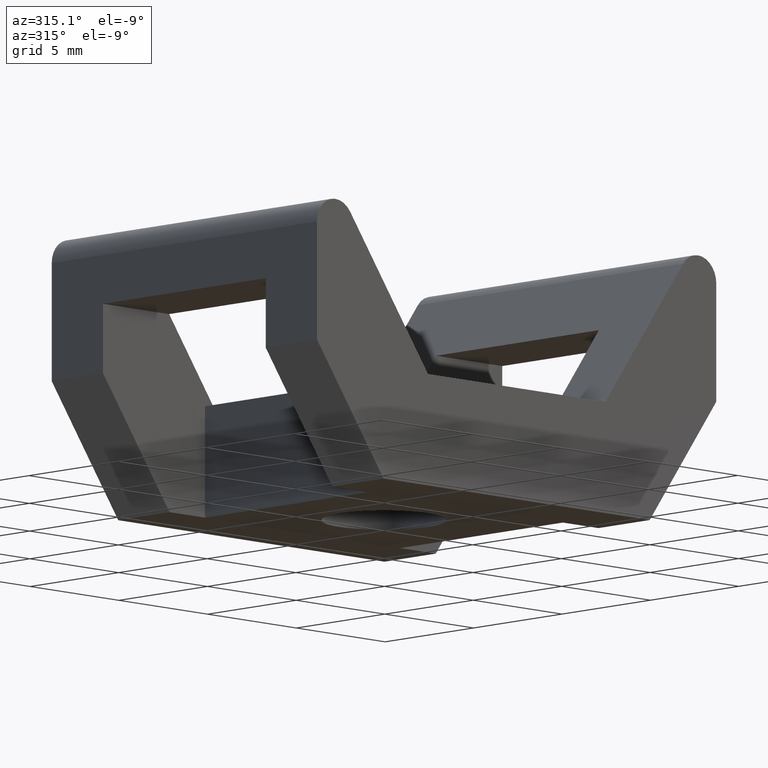
[diagram: clean part render]
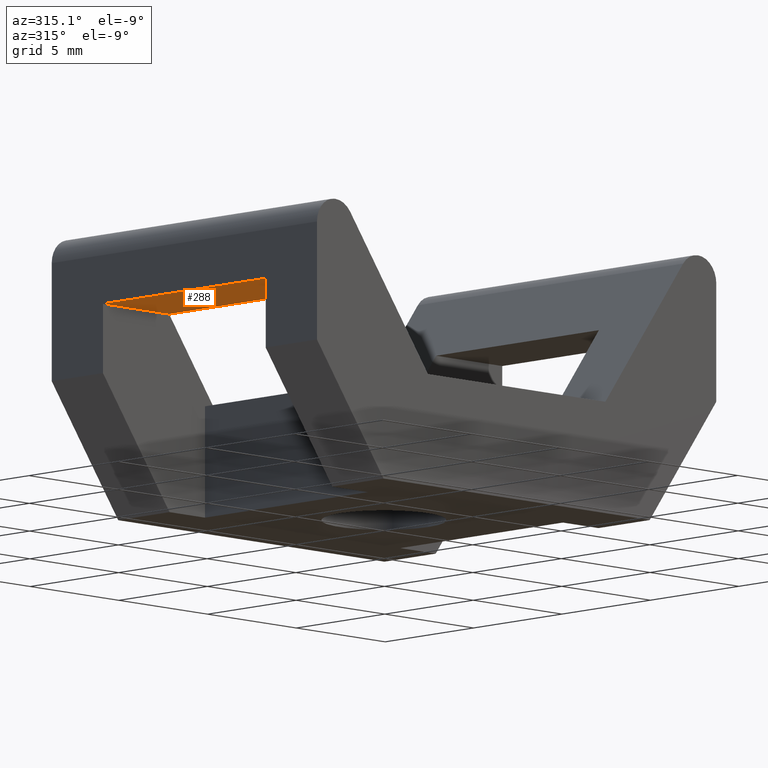
[diagram: same view with one face highlighted and labeled with its STEP entity id]
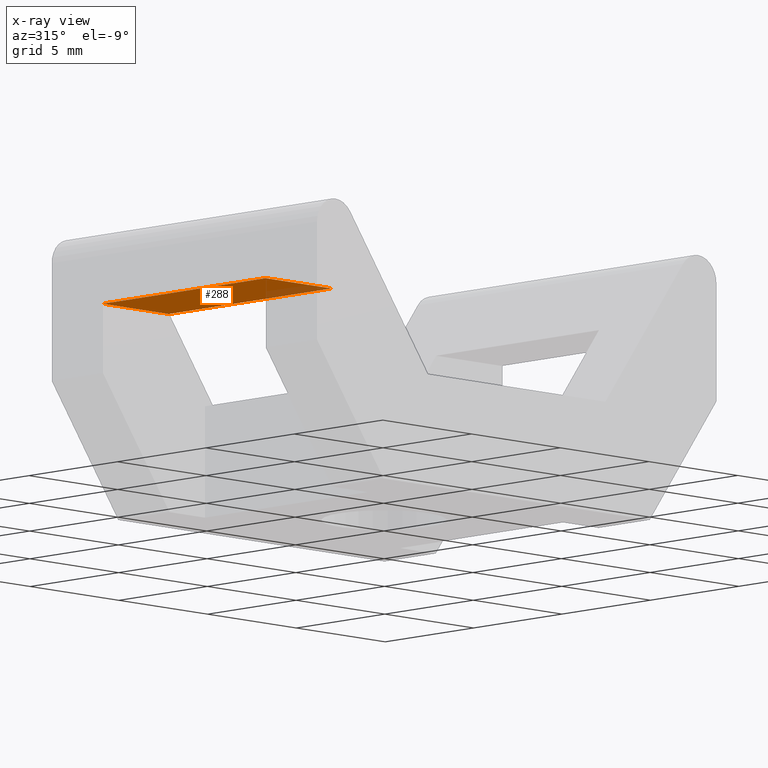
[diagram: x-ray of the same camera — body ghosted, the highlighted face saturated]
A machine part, auxiliary view. The second image highlights one B-rep face of the part: STEP entity #288.
The next image is the same camera in x-ray: the body ghosted, the highlighted face saturated — about 12% of this face is hidden behind the body in this view.
In plain terms, the highlighted planar face has unit normal (0, -0, 1).
Its self-contained STEP definition (entity closure, byte-faithful):
#14 = CARTESIAN_POINT ( 'NONE',  ( -11.24999999999999800, -4.599999999999999600, 8.000000000000010700 ) ) ;
#66 = FACE_OUTER_BOUND ( 'NONE', #748, .T. ) ;
#76 = CARTESIAN_POINT ( 'NONE',  ( -7.524038461538469700, 0.0000000000000000000, 8.000000000000000000 ) ) ;
#121 = EDGE_CURVE ( 'NONE', #470, #867, #317, .T. ) ;
#159 = ORIENTED_EDGE ( 'NONE', *, *, #519, .T. ) ;
#162 = VERTEX_POINT ( 'NONE', #460 ) ;
#243 = DIRECTION ( 'NONE',  ( 2.775557561562889900E-016, -0.0000000000000000000, 1.000000000000000000 ) ) ;
#273 = ORIENTED_EDGE ( 'NONE', *, *, #686, .T. ) ;
#288 = ADVANCED_FACE ( 'NONE', ( #66 ), #833, .F. ) ;
#305 = VECTOR ( 'NONE', #345, 1000.000000000000000 ) ;
#317 = LINE ( 'NONE', #76, #646 ) ;
#323 = EDGE_CURVE ( 'NONE', #162, #955, #514, .T. ) ;
#345 = DIRECTION ( 'NONE',  ( -0.0000000000000000000, -1.000000000000000000, 0.0000000000000000000 ) ) ;
#406 = DIRECTION ( 'NONE',  ( 1.000000000000000000, -0.0000000000000000000, 0.0000000000000000000 ) ) ;
#409 = CARTESIAN_POINT ( 'NONE',  ( -11.24999999999999800, 0.0000000000000000000, 8.000000000000010700 ) ) ;
#450 = VECTOR ( 'NONE', #606, 1000.000000000000000 ) ;
#460 = CARTESIAN_POINT ( 'NONE',  ( -11.25000000000000200, 4.599999999999999600, 8.000000000000010700 ) ) ;
#470 = VERTEX_POINT ( 'NONE', #1028 ) ;
#489 = CARTESIAN_POINT ( 'NONE',  ( -5.500000000000000000, 4.599999999999999600, 8.000000000000010700 ) ) ;
#514 = LINE ( 'NONE', #409, #305 ) ;
#519 = EDGE_CURVE ( 'NONE', #470, #955, #535, .T. ) ;
#522 = CARTESIAN_POINT ( 'NONE',  ( -7.524038461538468800, 4.599999999999999600, 8.000000000000007100 ) ) ;
#535 = LINE ( 'NONE', #547, #450 ) ;
#547 = CARTESIAN_POINT ( 'NONE',  ( -11.25000000000000000, -4.599999999999999600, 8.000000000000010700 ) ) ;
#601 = ORIENTED_EDGE ( 'NONE', *, *, #121, .F. ) ;
#606 = DIRECTION ( 'NONE',  ( -1.000000000000000000, -0.0000000000000000000, -0.0000000000000000000 ) ) ;
#646 = VECTOR ( 'NONE', #849, 1000.000000000000000 ) ;
#651 = ORIENTED_EDGE ( 'NONE', *, *, #323, .F. ) ;
#686 = EDGE_CURVE ( 'NONE', #162, #867, #1074, .T. ) ;
#748 = EDGE_LOOP ( 'NONE', ( #159, #651, #273, #601 ) ) ;
#753 = CARTESIAN_POINT ( 'NONE',  ( -8.375000000000000000, 0.0000000000000000000, 8.000000000000000000 ) ) ;
#756 = DIRECTION ( 'NONE',  ( 1.000000000000000000, 0.0000000000000000000, -2.775557561562889900E-016 ) ) ;
#833 = PLANE ( 'NONE',  #888 ) ;
#849 = DIRECTION ( 'NONE',  ( 0.0000000000000000000, 1.000000000000000000, 0.0000000000000000000 ) ) ;
#867 = VERTEX_POINT ( 'NONE', #522 ) ;
#872 = VECTOR ( 'NONE', #406, 1000.000000000000000 ) ;
#888 = AXIS2_PLACEMENT_3D ( 'NONE', #753, #243, #756 ) ;
#955 = VERTEX_POINT ( 'NONE', #14 ) ;
#1028 = CARTESIAN_POINT ( 'NONE',  ( -7.524038461538464300, -4.599999999999999600, 8.000000000000012400 ) ) ;
#1074 = LINE ( 'NONE', #489, #872 ) ;